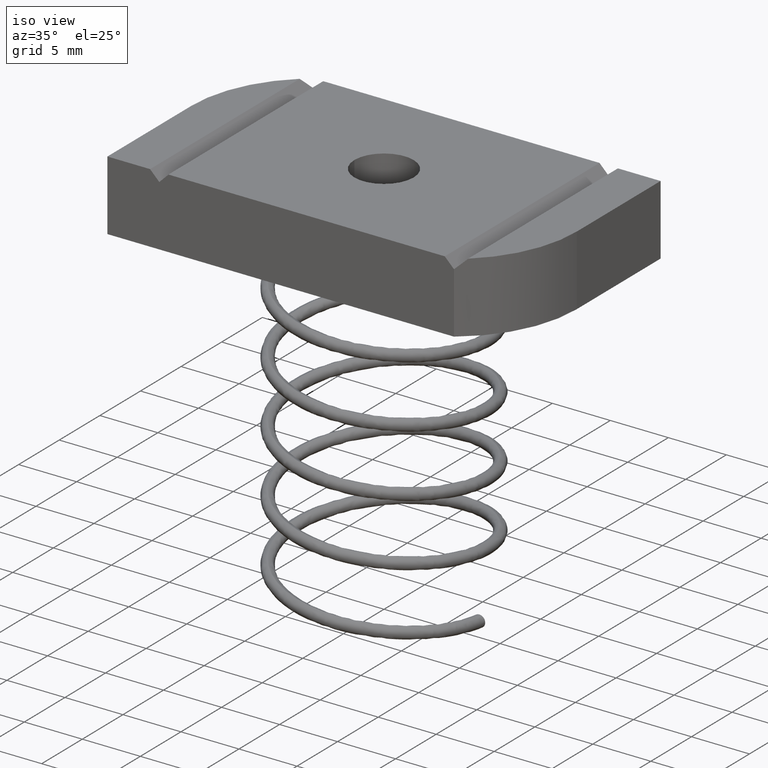
[diagram: clean part render]
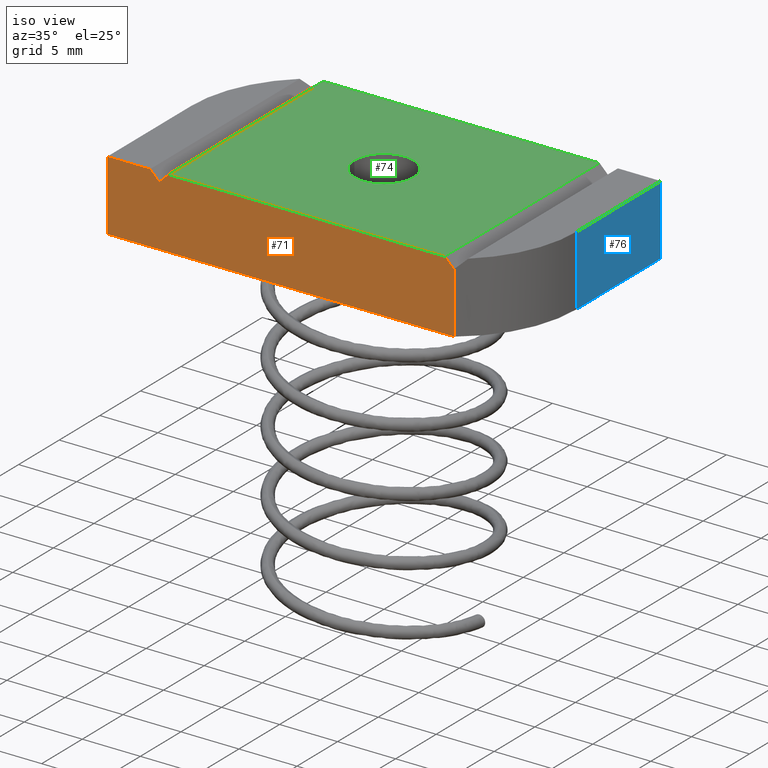
[diagram: same view with three faces highlighted in distinct colors, each labeled with its STEP entity id]
A machine part, iso view with three faces highlighted in distinct colors.
Their STEP definitions:

[orange] entity #71 — the highlighted planar face has unit normal (0, 1, 0).
#7 = ORIENTED_EDGE ( 'NONE', *, *, #2656, .F. ) ;
#19 = ORIENTED_EDGE ( 'NONE', *, *, #126, .F. ) ;
#27 = LINE ( 'NONE', #1018, #1998 ) ;
#33 = ORIENTED_EDGE ( 'NONE', *, *, #136, .F. ) ;
#51 = ORIENTED_EDGE ( 'NONE', *, *, #89, .F. ) ;
#52 = ORIENTED_EDGE ( 'NONE', *, *, #141, .T. ) ;
#71 = ADVANCED_FACE ( 'NONE', ( #1168 ), #2569, .F. ) ;
#89 = EDGE_CURVE ( 'NONE', #2580, #2551, #250, .T. ) ;
#103 = EDGE_CURVE ( 'NONE', #2556, #2557, #255, .T. ) ;
#109 = EDGE_CURVE ( 'NONE', #2591, #2583, #1992, .T. ) ;
#116 = AXIS2_PLACEMENT_3D ( 'NONE', #2592, #2554, #2562 ) ;
#126 = EDGE_CURVE ( 'NONE', #2598, #2580, #27, .T. ) ;
#127 = EDGE_CURVE ( 'NONE', #2556, #2598, #2000, .T. ) ;
#136 = EDGE_CURVE ( 'NONE', #2590, #2591, #2006, .T. ) ;
#141 = EDGE_CURVE ( 'NONE', #2557, #2583, #261, .T. ) ;
#206 = VECTOR ( 'NONE', #1066, 39.37007874015748100 ) ;
#208 = VECTOR ( 'NONE', #1115, 39.37007874015748100 ) ;
#209 = LINE ( 'NONE', #1114, #208 ) ;
#250 = LINE ( 'NONE', #675, #254 ) ;
#254 = VECTOR ( 'NONE', #676, 39.37007874015748900 ) ;
#255 = LINE ( 'NONE', #851, #1991 ) ;
#261 = LINE ( 'NONE', #1065, #206 ) ;
#675 = CARTESIAN_POINT ( 'NONE',  ( -0.5000000000000000000, -0.3750000000000000600, 0.08774999999999996700 ) ) ;
#676 = DIRECTION ( 'NONE',  ( 0.7071067811865476800, 0.0000000000000000000, 0.7071067811865472400 ) ) ;
#851 = CARTESIAN_POINT ( 'NONE',  ( -0.6760000000000001600, -0.3750000000000000600, 0.1189999999999999900 ) ) ;
#1002 = DIRECTION ( 'NONE',  ( -0.0000000000000000000, -0.0000000000000000000, -1.000000000000000000 ) ) ;
#1010 = CARTESIAN_POINT ( 'NONE',  ( 0.5000000000000001100, -0.3750000000000000600, 0.1189999999999999900 ) ) ;
#1011 = DIRECTION ( 'NONE',  ( -0.0000000000000000000, -0.0000000000000000000, -1.000000000000000000 ) ) ;
#1012 = CARTESIAN_POINT ( 'NONE',  ( -0.6760000000000001600, -0.3750000000000000600, 0.1189999999999999900 ) ) ;
#1018 = CARTESIAN_POINT ( 'NONE',  ( -0.5312499999999996700, -0.3750000000000000600, 0.1189999999999999800 ) ) ;
#1019 = DIRECTION ( 'NONE',  ( 0.7071067811865440200, 0.0000000000000000000, -0.7071067811865509000 ) ) ;
#1021 = DIRECTION ( 'NONE',  ( 1.000000000000000000, 0.0000000000000000000, 0.0000000000000000000 ) ) ;
#1033 = CARTESIAN_POINT ( 'NONE',  ( 0.4687499999999999400, -0.3750000000000000600, 0.1189999999999999900 ) ) ;
#1040 = DIRECTION ( 'NONE',  ( 0.7071067811865465700, 0.0000000000000000000, -0.7071067811865484600 ) ) ;
#1059 = CARTESIAN_POINT ( 'NONE',  ( -0.4687499999999999400, -0.3750000000000000600, 0.1189999999999999900 ) ) ;
#1064 = CARTESIAN_POINT ( 'NONE',  ( -0.6760000000000001600, -0.3750000000000000600, -0.1189999999999999900 ) ) ;
#1065 = CARTESIAN_POINT ( 'NONE',  ( -0.6760000000000001600, -0.3750000000000000600, -0.1189999999999999900 ) ) ;
#1066 = DIRECTION ( 'NONE',  ( 1.000000000000000000, 0.0000000000000000000, 0.0000000000000000000 ) ) ;
#1071 = CARTESIAN_POINT ( 'NONE',  ( -0.6760000000000001600, -0.3750000000000000600, 0.1189999999999999900 ) ) ;
#1079 = CARTESIAN_POINT ( 'NONE',  ( -0.5000000000000000000, -0.3750000000000000600, 0.08774999999999996700 ) ) ;
#1082 = CARTESIAN_POINT ( 'NONE',  ( 0.5000000000000001100, -0.3750000000000000600, -0.1189999999999999900 ) ) ;
#1087 = CARTESIAN_POINT ( 'NONE',  ( 0.4687499999999999400, -0.3750000000000000600, 0.1189999999999999900 ) ) ;
#1088 = CARTESIAN_POINT ( 'NONE',  ( 0.5000000000000001100, -0.3750000000000000600, 0.08774999999999987000 ) ) ;
#1091 = CARTESIAN_POINT ( 'NONE',  ( -0.5312499999999996700, -0.3750000000000000600, 0.1189999999999999800 ) ) ;
#1114 = CARTESIAN_POINT ( 'NONE',  ( -0.6760000000000001600, -0.3750000000000000600, 0.1189999999999999900 ) ) ;
#1115 = DIRECTION ( 'NONE',  ( 1.000000000000000000, 0.0000000000000000000, 0.0000000000000000000 ) ) ;
#1168 = FACE_OUTER_BOUND ( 'NONE', #2040, .T. ) ;
#1991 = VECTOR ( 'NONE', #1002, 39.37007874015748100 ) ;
#1992 = LINE ( 'NONE', #1010, #1993 ) ;
#1993 = VECTOR ( 'NONE', #1011, 39.37007874015748100 ) ;
#1998 = VECTOR ( 'NONE', #1019, 39.37007874015748900 ) ;
#2000 = LINE ( 'NONE', #1012, #2002 ) ;
#2002 = VECTOR ( 'NONE', #1021, 39.37007874015748100 ) ;
#2006 = LINE ( 'NONE', #1033, #2017 ) ;
#2017 = VECTOR ( 'NONE', #1040, 39.37007874015748100 ) ;
#2040 = EDGE_LOOP ( 'NONE', ( #2044, #33, #7, #51, #19, #2063, #2641, #52 ) ) ;
#2044 = ORIENTED_EDGE ( 'NONE', *, *, #109, .F. ) ;
#2063 = ORIENTED_EDGE ( 'NONE', *, *, #127, .F. ) ;
#2551 = VERTEX_POINT ( 'NONE', #1059 ) ;
#2554 = DIRECTION ( 'NONE',  ( 0.0000000000000000000, 1.000000000000000000, 0.0000000000000000000 ) ) ;
#2556 = VERTEX_POINT ( 'NONE', #1071 ) ;
#2557 = VERTEX_POINT ( 'NONE', #1064 ) ;
#2562 = DIRECTION ( 'NONE',  ( 0.0000000000000000000, -0.0000000000000000000, 1.000000000000000000 ) ) ;
#2569 = PLANE ( 'NONE',  #116 ) ;
#2580 = VERTEX_POINT ( 'NONE', #1079 ) ;
#2583 = VERTEX_POINT ( 'NONE', #1082 ) ;
#2590 = VERTEX_POINT ( 'NONE', #1087 ) ;
#2591 = VERTEX_POINT ( 'NONE', #1088 ) ;
#2592 = CARTESIAN_POINT ( 'NONE',  ( -0.6760000000000001600, -0.3750000000000000600, 0.1189999999999999900 ) ) ;
#2598 = VERTEX_POINT ( 'NONE', #1091 ) ;
#2641 = ORIENTED_EDGE ( 'NONE', *, *, #103, .T. ) ;
#2656 = EDGE_CURVE ( 'NONE', #2551, #2590, #209, .T. ) ;

[blue] entity #76 — the highlighted planar face has unit normal (-1, 0, 0).
#53 = ORIENTED_EDGE ( 'NONE', *, *, #131, .F. ) ;
#59 = ORIENTED_EDGE ( 'NONE', *, *, #139, .T. ) ;
#76 = ADVANCED_FACE ( 'NONE', ( #233 ), #142, .F. ) ;
#121 = AXIS2_PLACEMENT_3D ( 'NONE', #155, #154, #153 ) ;
#131 = EDGE_CURVE ( 'NONE', #2599, #2577, #2007, .T. ) ;
#139 = EDGE_CURVE ( 'NONE', #2548, #2581, #2020, .T. ) ;
#140 = EDGE_CURVE ( 'NONE', #2599, #2548, #2018, .T. ) ;
#142 = PLANE ( 'NONE',  #121 ) ;
#153 = DIRECTION ( 'NONE',  ( 0.0000000000000000000, 0.0000000000000000000, 1.000000000000000000 ) ) ;
#154 = DIRECTION ( 'NONE',  ( -1.000000000000000000, 0.0000000000000000000, 0.0000000000000000000 ) ) ;
#155 = CARTESIAN_POINT ( 'NONE',  ( 0.6760000000000001600, 0.3750000000000000600, 0.1189999999999999900 ) ) ;
#211 = LINE ( 'NONE', #1096, #219 ) ;
#219 = VECTOR ( 'NONE', #1110, 39.37007874015748100 ) ;
#233 = FACE_OUTER_BOUND ( 'NONE', #1156, .T. ) ;
#1022 = CARTESIAN_POINT ( 'NONE',  ( 0.6760000000000001600, 0.3750000000000000600, 0.1189999999999999900 ) ) ;
#1030 = DIRECTION ( 'NONE',  ( -0.0000000000000000000, 1.000000000000000000, -0.0000000000000000000 ) ) ;
#1041 = CARTESIAN_POINT ( 'NONE',  ( 0.6760000000000001600, -0.03099999999999990600, 0.1189999999999999900 ) ) ;
#1060 = CARTESIAN_POINT ( 'NONE',  ( 0.6760000000000001600, 0.3750000000000000600, -0.1189999999999999900 ) ) ;
#1061 = DIRECTION ( 'NONE',  ( -0.0000000000000000000, 1.000000000000000000, -0.0000000000000000000 ) ) ;
#1063 = DIRECTION ( 'NONE',  ( -0.0000000000000000000, -0.0000000000000000000, -1.000000000000000000 ) ) ;
#1068 = CARTESIAN_POINT ( 'NONE',  ( 0.6760000000000001600, -0.03099999999999990600, -0.1189999999999999900 ) ) ;
#1077 = CARTESIAN_POINT ( 'NONE',  ( 0.6760000000000001600, 0.3750000000000000600, 0.1189999999999999900 ) ) ;
#1080 = CARTESIAN_POINT ( 'NONE',  ( 0.6760000000000001600, 0.3750000000000000600, -0.1189999999999999900 ) ) ;
#1092 = CARTESIAN_POINT ( 'NONE',  ( 0.6760000000000001600, -0.03099999999999990600, 0.1189999999999999900 ) ) ;
#1096 = CARTESIAN_POINT ( 'NONE',  ( 0.6760000000000001600, 0.3750000000000000600, 0.1189999999999999900 ) ) ;
#1110 = DIRECTION ( 'NONE',  ( -0.0000000000000000000, -0.0000000000000000000, -1.000000000000000000 ) ) ;
#1156 = EDGE_LOOP ( 'NONE', ( #59, #2027, #53, #2026 ) ) ;
#2003 = VECTOR ( 'NONE', #1030, 39.37007874015748100 ) ;
#2007 = LINE ( 'NONE', #1022, #2003 ) ;
#2018 = LINE ( 'NONE', #1041, #2022 ) ;
#2020 = LINE ( 'NONE', #1060, #2021 ) ;
#2021 = VECTOR ( 'NONE', #1061, 39.37007874015748100 ) ;
#2022 = VECTOR ( 'NONE', #1063, 39.37007874015748100 ) ;
#2026 = ORIENTED_EDGE ( 'NONE', *, *, #140, .T. ) ;
#2027 = ORIENTED_EDGE ( 'NONE', *, *, #2654, .F. ) ;
#2548 = VERTEX_POINT ( 'NONE', #1068 ) ;
#2577 = VERTEX_POINT ( 'NONE', #1077 ) ;
#2581 = VERTEX_POINT ( 'NONE', #1080 ) ;
#2599 = VERTEX_POINT ( 'NONE', #1092 ) ;
#2654 = EDGE_CURVE ( 'NONE', #2577, #2581, #211, .T. ) ;

[green] entity #74 — the highlighted planar face has unit normal (-0, 0, -1).
#32 = ORIENTED_EDGE ( 'NONE', *, *, #2659, .T. ) ;
#38 = ORIENTED_EDGE ( 'NONE', *, *, #94, .F. ) ;
#40 = ORIENTED_EDGE ( 'NONE', *, *, #2656, .T. ) ;
#46 = ORIENTED_EDGE ( 'NONE', *, *, #2658, .F. ) ;
#54 = ORIENTED_EDGE ( 'NONE', *, *, #2657, .T. ) ;
#74 = ADVANCED_FACE ( 'NONE', ( #231, #230 ), #2560, .F. ) ;
#94 = EDGE_CURVE ( 'NONE', #2576, #2588, #260, .T. ) ;
#119 = AXIS2_PLACEMENT_3D ( 'NONE', #2597, #147, #148 ) ;
#147 = DIRECTION ( 'NONE',  ( -0.0000000000000000000, 0.0000000000000000000, -1.000000000000000000 ) ) ;
#148 = DIRECTION ( 'NONE',  ( -1.000000000000000000, 0.0000000000000000000, 0.0000000000000000000 ) ) ;
#208 = VECTOR ( 'NONE', #1115, 39.37007874015748100 ) ;
#209 = LINE ( 'NONE', #1114, #208 ) ;
#220 = LINE ( 'NONE', #1106, #222 ) ;
#221 = CIRCLE ( 'NONE', #2542, 0.1004999999999995200 ) ;
#222 = VECTOR ( 'NONE', #1117, 39.37007874015748100 ) ;
#223 = LINE ( 'NONE', #1118, #224 ) ;
#224 = VECTOR ( 'NONE', #1119, 39.37007874015748100 ) ;
#225 = LINE ( 'NONE', #1120, #226 ) ;
#226 = VECTOR ( 'NONE', #1121, 39.37007874015748100 ) ;
#230 = FACE_OUTER_BOUND ( 'NONE', #1159, .T. ) ;
#231 = FACE_BOUND ( 'NONE', #2033, .T. ) ;
#260 = CIRCLE ( 'NONE', #2522, 0.1004999999999995200 ) ;
#688 = CARTESIAN_POINT ( 'NONE',  ( 0.0000000000000000000, 0.0000000000000000000, 0.1190000000000000500 ) ) ;
#689 = DIRECTION ( 'NONE',  ( -0.0000000000000000000, -0.0000000000000000000, 1.000000000000000000 ) ) ;
#690 = DIRECTION ( 'NONE',  ( 1.000000000000000000, 0.0000000000000000000, 0.0000000000000000000 ) ) ;
#1059 = CARTESIAN_POINT ( 'NONE',  ( -0.4687499999999999400, -0.3750000000000000600, 0.1189999999999999900 ) ) ;
#1062 = CARTESIAN_POINT ( 'NONE',  ( -0.1004999999999995200, 1.230770033143085600E-017, 0.1190000000000000500 ) ) ;
#1070 = CARTESIAN_POINT ( 'NONE',  ( -0.4687499999999999400, 0.3750000000000000600, 0.1189999999999999900 ) ) ;
#1076 = CARTESIAN_POINT ( 'NONE',  ( 0.4687499999999999400, 0.3750000000000000600, 0.1189999999999999900 ) ) ;
#1086 = CARTESIAN_POINT ( 'NONE',  ( 0.1004999999999995200, 0.0000000000000000000, 0.1190000000000000500 ) ) ;
#1087 = CARTESIAN_POINT ( 'NONE',  ( 0.4687499999999999400, -0.3750000000000000600, 0.1189999999999999900 ) ) ;
#1106 = CARTESIAN_POINT ( 'NONE',  ( -0.5000000000000000000, 0.3750000000000000600, 0.1189999999999999900 ) ) ;
#1109 = CARTESIAN_POINT ( 'NONE',  ( 0.0000000000000000000, 0.0000000000000000000, 0.1190000000000000500 ) ) ;
#1111 = DIRECTION ( 'NONE',  ( -0.0000000000000000000, -0.0000000000000000000, 1.000000000000000000 ) ) ;
#1112 = DIRECTION ( 'NONE',  ( 1.000000000000000000, 0.0000000000000000000, 0.0000000000000000000 ) ) ;
#1114 = CARTESIAN_POINT ( 'NONE',  ( -0.6760000000000001600, -0.3750000000000000600, 0.1189999999999999900 ) ) ;
#1115 = DIRECTION ( 'NONE',  ( 1.000000000000000000, 0.0000000000000000000, 0.0000000000000000000 ) ) ;
#1117 = DIRECTION ( 'NONE',  ( -1.000000000000000000, -0.0000000000000000000, -0.0000000000000000000 ) ) ;
#1118 = CARTESIAN_POINT ( 'NONE',  ( 0.4687499999999999400, 0.3750000000000000600, 0.1189999999999999900 ) ) ;
#1119 = DIRECTION ( 'NONE',  ( -0.0000000000000000000, -1.000000000000000000, -0.0000000000000000000 ) ) ;
#1120 = CARTESIAN_POINT ( 'NONE',  ( -0.4687499999999999400, 0.3750000000000000600, 0.1189999999999999900 ) ) ;
#1121 = DIRECTION ( 'NONE',  ( -0.0000000000000000000, -1.000000000000000000, -0.0000000000000000000 ) ) ;
#1159 = EDGE_LOOP ( 'NONE', ( #40, #46, #54, #32 ) ) ;
#2029 = ORIENTED_EDGE ( 'NONE', *, *, #2655, .F. ) ;
#2033 = EDGE_LOOP ( 'NONE', ( #2029, #38 ) ) ;
#2522 = AXIS2_PLACEMENT_3D ( 'NONE', #688, #689, #690 ) ;
#2542 = AXIS2_PLACEMENT_3D ( 'NONE', #1109, #1111, #1112 ) ;
#2550 = VERTEX_POINT ( 'NONE', #1070 ) ;
#2551 = VERTEX_POINT ( 'NONE', #1059 ) ;
#2560 = PLANE ( 'NONE',  #119 ) ;
#2575 = VERTEX_POINT ( 'NONE', #1076 ) ;
#2576 = VERTEX_POINT ( 'NONE', #1062 ) ;
#2588 = VERTEX_POINT ( 'NONE', #1086 ) ;
#2590 = VERTEX_POINT ( 'NONE', #1087 ) ;
#2597 = CARTESIAN_POINT ( 'NONE',  ( 0.2518181818181817700, -0.03099999999999995500, 0.1189999999999999900 ) ) ;
#2655 = EDGE_CURVE ( 'NONE', #2588, #2576, #221, .T. ) ;
#2656 = EDGE_CURVE ( 'NONE', #2551, #2590, #209, .T. ) ;
#2657 = EDGE_CURVE ( 'NONE', #2575, #2550, #220, .T. ) ;
#2658 = EDGE_CURVE ( 'NONE', #2575, #2590, #223, .T. ) ;
#2659 = EDGE_CURVE ( 'NONE', #2550, #2551, #225, .T. ) ;